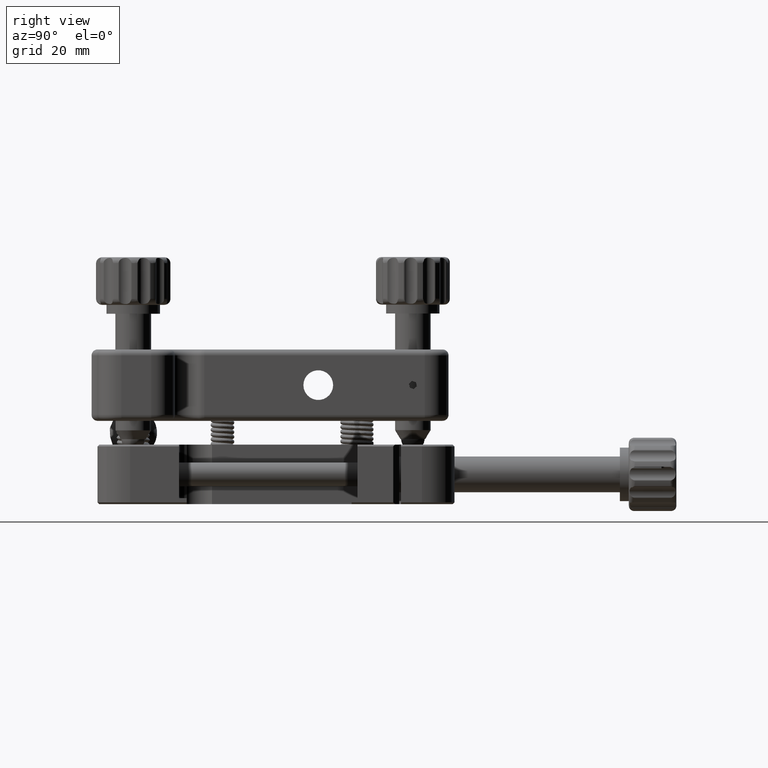
[diagram: clean part render]
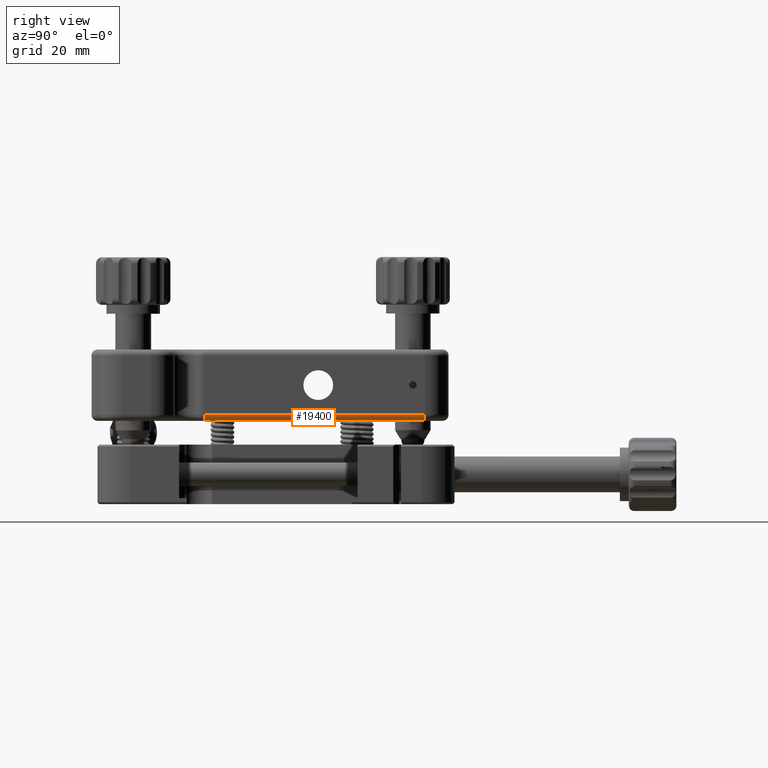
[diagram: same view with one face highlighted and labeled with its STEP entity id]
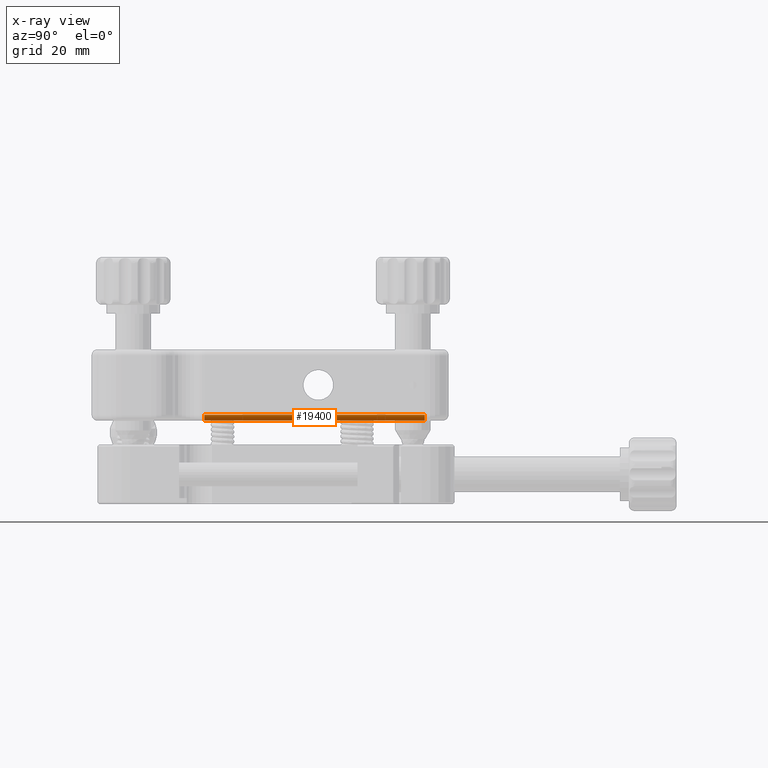
[diagram: x-ray of the same camera — body ghosted, the highlighted face saturated]
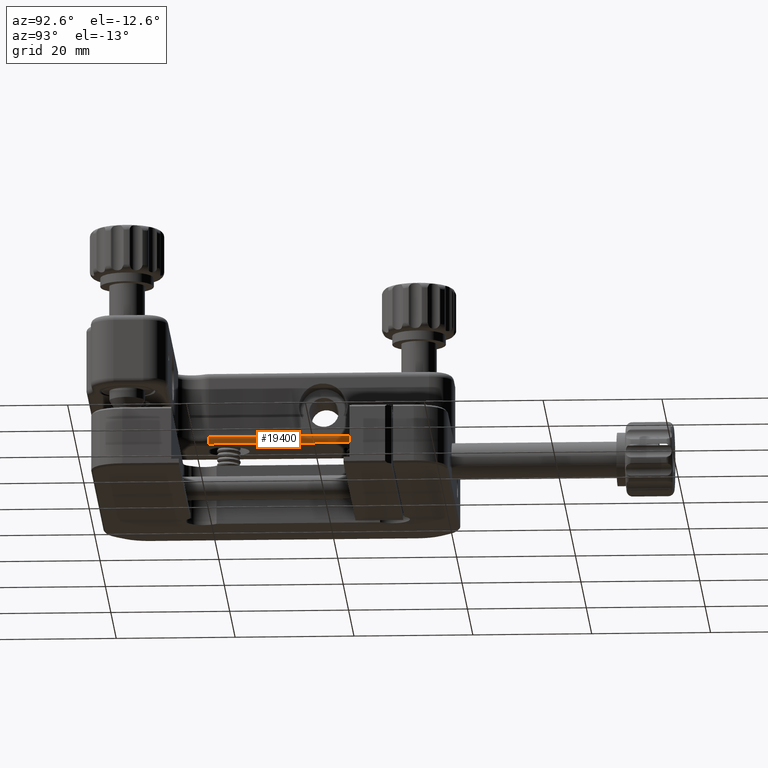
[diagram: same view with one face highlighted and labeled with its STEP entity id]
A machine part, right view. The second image highlights one B-rep face of the part: STEP entity #19400.
The next image is the same camera in x-ray: the body ghosted, the highlighted face saturated — about 0% of this face is hidden behind the body in this view.
A second angle (auxiliary view) of the same face is appended — the face is thin or edge-on in the first view.
In plain terms, the highlighted cylindrical surface (edge-blend (fillet) strip) has radius 1 mm, axis along (0, 1, -0).
Its self-contained STEP definition (entity closure, byte-faithful):
#128 = AXIS2_PLACEMENT_3D ( 'NONE', #9877, #6192, #8030 ) ;
#2410 = EDGE_CURVE ( 'NONE', #10319, #6542, #16170, .T. ) ;
#2681 = VECTOR ( 'NONE', #4475, 1000.000000000000000 ) ;
#3724 = CARTESIAN_POINT ( 'NONE',  ( 13.00000000000007105, 55.99999999999999289, -6.000000000000036415 ) ) ;
#4289 = DIRECTION ( 'NONE',  ( 1.000000000000000000, 0.000000000000000000, 0.000000000000000000 ) ) ;
#4475 = DIRECTION ( 'NONE',  ( 3.081473379386345406E-32, 1.000000000000000000, -3.081488263694794111E-31 ) ) ;
#5559 = CARTESIAN_POINT ( 'NONE',  ( 13.00000000000007105, 18.95234818266025556, -6.000000000000036415 ) ) ;
#5878 = AXIS2_PLACEMENT_3D ( 'NONE', #22810, #9812, #4289 ) ;
#6192 = DIRECTION ( 'NONE',  ( 3.081473379386345406E-32, 1.000000000000000000, -3.081488263694794111E-31 ) ) ;
#6295 = EDGE_CURVE ( 'NONE', #18599, #10319, #21651, .T. ) ;
#6542 = VERTEX_POINT ( 'NONE', #3724 ) ;
#7603 = CARTESIAN_POINT ( 'NONE',  ( 14.00000000000007283, 55.99999999999999289, -5.000000000000018652 ) ) ;
#8030 = DIRECTION ( 'NONE',  ( 1.000000000000000000, 0.000000000000000000, 0.000000000000000000 ) ) ;
#8334 = FACE_OUTER_BOUND ( 'NONE', #16400, .T. ) ;
#9812 = DIRECTION ( 'NONE',  ( 3.081473379386345406E-32, 1.000000000000000000, -3.081488263694794111E-31 ) ) ;
#9877 = CARTESIAN_POINT ( 'NONE',  ( 13.00000000000007461, 55.99999999999999289, -5.000000000000018652 ) ) ;
#10174 = ORIENTED_EDGE ( 'NONE', *, *, #6295, .F. ) ;
#10242 = ORIENTED_EDGE ( 'NONE', *, *, #2410, .F. ) ;
#10270 = EDGE_CURVE ( 'NONE', #6542, #16083, #24022, .T. ) ;
#10319 = VERTEX_POINT ( 'NONE', #7603 ) ;
#10381 = VECTOR ( 'NONE', #14605, 1000.000000000000000 ) ;
#10704 = ORIENTED_EDGE ( 'NONE', *, *, #10270, .F. ) ;
#11337 = DIRECTION ( 'NONE',  ( 3.081473379386345406E-32, 1.000000000000000000, -3.081488263694794111E-31 ) ) ;
#13058 = DIRECTION ( 'NONE',  ( 1.000000000000000000, 0.000000000000000000, 0.000000000000000000 ) ) ;
#14605 = DIRECTION ( 'NONE',  ( -3.081473379386345406E-32, -1.000000000000000000, 3.081488263694794111E-31 ) ) ;
#15807 = CYLINDRICAL_SURFACE ( 'NONE', #5878, 1.000000000000004441 ) ;
#16083 = VERTEX_POINT ( 'NONE', #5559 ) ;
#16093 = EDGE_CURVE ( 'NONE', #18599, #16083, #18669, .T. ) ;
#16170 = CIRCLE ( 'NONE', #128, 1.000000000000004441 ) ;
#16400 = EDGE_LOOP ( 'NONE', ( #21051, #10704, #10242, #10174 ) ) ;
#17489 = CARTESIAN_POINT ( 'NONE',  ( 14.00000000000007283, 18.95234818266025556, -5.000000000000018652 ) ) ;
#17954 = CARTESIAN_POINT ( 'NONE',  ( 14.00000000000007283, 55.99999999999999289, -5.000000000000018652 ) ) ;
#18599 = VERTEX_POINT ( 'NONE', #17489 ) ;
#18669 = CIRCLE ( 'NONE', #18732, 1.000000000000004441 ) ;
#18732 = AXIS2_PLACEMENT_3D ( 'NONE', #22367, #11337, #13058 ) ;
#19400 = ADVANCED_FACE ( 'NONE', ( #8334 ), #15807, .T. ) ;
#21051 = ORIENTED_EDGE ( 'NONE', *, *, #16093, .T. ) ;
#21651 = LINE ( 'NONE', #17954, #2681 ) ;
#21957 = CARTESIAN_POINT ( 'NONE',  ( 13.00000000000007105, 18.95234818266025556, -6.000000000000036415 ) ) ;
#22367 = CARTESIAN_POINT ( 'NONE',  ( 13.00000000000007461, 18.95234818266025556, -5.000000000000018652 ) ) ;
#22810 = CARTESIAN_POINT ( 'NONE',  ( 13.00000000000007105, -2.000000000000000888, -5.000000000000018652 ) ) ;
#24022 = LINE ( 'NONE', #21957, #10381 ) ;